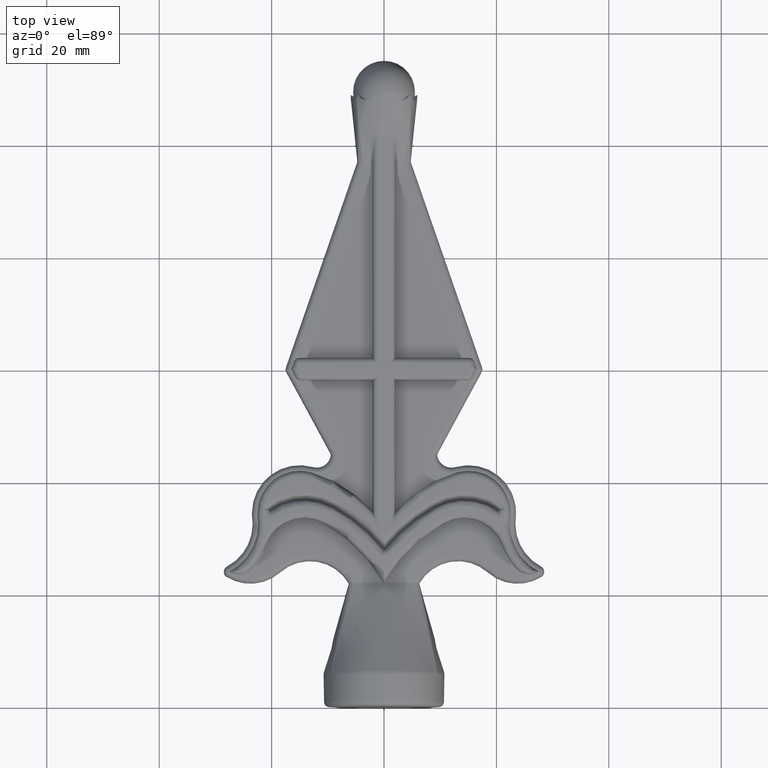
[diagram: clean part render]
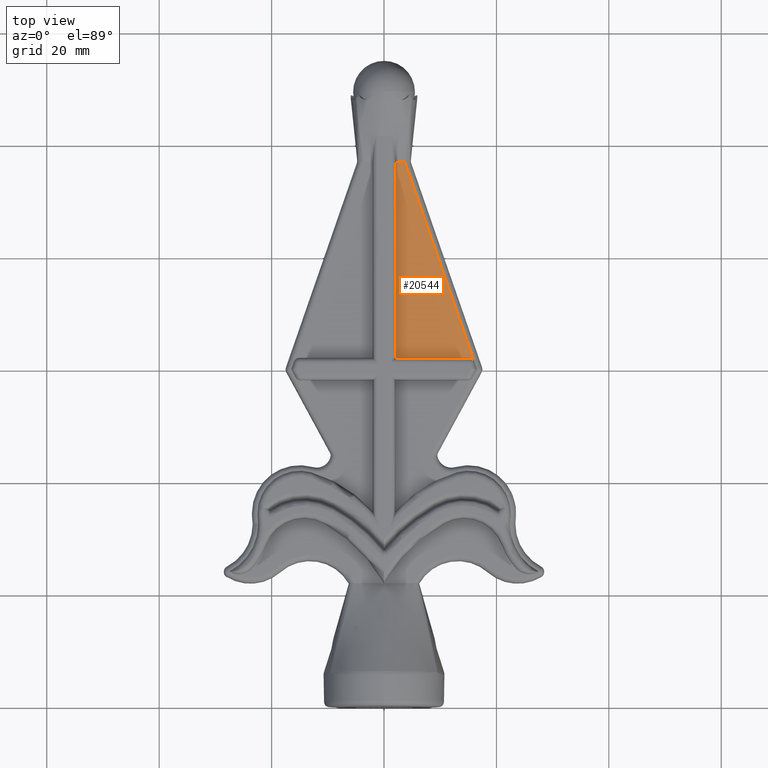
[diagram: same view with one face highlighted and labeled with its STEP entity id]
A machine part, top view. The second image highlights one B-rep face of the part: STEP entity #20544.
In plain terms, the highlighted planar face has unit normal (-0, 0, -1).
Its self-contained STEP definition (entity closure, byte-faithful):
#169 = DIRECTION ( 'NONE',  ( -1.092987269936850200E-014, 1.000000000000000000, 0.0000000000000000000 ) ) ;
#449 = CARTESIAN_POINT ( 'NONE',  ( 2.000000000000380600, 62.08884513025772400, 3.250000000000000000 ) ) ;
#649 = EDGE_CURVE ( 'NONE', #6780, #6549, #1291, .T. ) ;
#746 = CARTESIAN_POINT ( 'NONE',  ( 3.706146098996258700, 96.95780299131691000, 3.250000000000000000 ) ) ;
#1291 = LINE ( 'NONE', #449, #17598 ) ;
#1550 = ORIENTED_EDGE ( 'NONE', *, *, #649, .F. ) ;
#2015 = CARTESIAN_POINT ( 'NONE',  ( 16.03923065094003100, 61.41667690367096800, 3.250000000000000000 ) ) ;
#2121 = DIRECTION ( 'NONE',  ( -1.000000000000000000, -0.0000000000000000000, -0.0000000000000000000 ) ) ;
#2552 = CIRCLE ( 'NONE', #5812, 0.9999999999999991100 ) ;
#2646 = CARTESIAN_POINT ( 'NONE',  ( 16.50000000000000000, 60.08884513025772400, 3.250000000000000000 ) ) ;
#2672 = ORIENTED_EDGE ( 'NONE', *, *, #11530, .T. ) ;
#2787 = DIRECTION ( 'NONE',  ( -0.0000000000000000000, 0.0000000000000000000, -1.000000000000000000 ) ) ;
#2855 = DIRECTION ( 'NONE',  ( -1.000000000000000000, 0.0000000000000000000, 0.0000000000000000000 ) ) ;
#2878 = FACE_OUTER_BOUND ( 'NONE', #8971, .T. ) ;
#3454 = CARTESIAN_POINT ( 'NONE',  ( 2.000000000000380600, 62.08884513025772400, 3.250000000000000000 ) ) ;
#4282 = CARTESIAN_POINT ( 'NONE',  ( 15.09449453522267100, 62.08884513025772400, 3.250000000000000000 ) ) ;
#4758 = ORIENTED_EDGE ( 'NONE', *, *, #15697, .T. ) ;
#5276 = LINE ( 'NONE', #3454, #15408 ) ;
#5333 = CARTESIAN_POINT ( 'NONE',  ( 2.568806202392000000, 96.92192348803551700, 3.250000000000035100 ) ) ;
#5730 = AXIS2_PLACEMENT_3D ( 'NONE', #2646, #2787, #2855 ) ;
#5812 = AXIS2_PLACEMENT_3D ( 'NONE', #14676, #17924, #16198 ) ;
#6386 = CARTESIAN_POINT ( 'NONE',  ( 3.330133707121612800, 98.04138461875560000, 3.250000000000000000 ) ) ;
#6549 = VERTEX_POINT ( 'NONE', #14469 ) ;
#6780 = VERTEX_POINT ( 'NONE', #4282 ) ;
#6849 = ORIENTED_EDGE ( 'NONE', *, *, #16042, .T. ) ;
#7624 = CARTESIAN_POINT ( 'NONE',  ( 1.999999999999999600, 96.90953574028071700, 3.250000000000000000 ) ) ;
#8971 = EDGE_LOOP ( 'NONE', ( #4758, #12905, #1550, #2672, #6849 ) ) ;
#11294 = DIRECTION ( 'NONE',  ( -0.3278317734132558100, 0.9447361157173571600, -0.0000000000000000000 ) ) ;
#11530 = EDGE_CURVE ( 'NONE', #6780, #20403, #2552, .T. ) ;
#11819 = CARTESIAN_POINT ( 'NONE',  ( 1.999999999999999600, 96.90953574028071700, 3.250000000000000000 ) ) ;
#12311 = VERTEX_POINT ( 'NONE', #16366 ) ;
#12905 = ORIENTED_EDGE ( 'NONE', *, *, #13552, .F. ) ;
#13552 = EDGE_CURVE ( 'NONE', #6549, #14214, #5276, .T. ) ;
#13632 = LINE ( 'NONE', #6386, #15582 ) ;
#14214 = VERTEX_POINT ( 'NONE', #7624 ) ;
#14469 = CARTESIAN_POINT ( 'NONE',  ( 2.000000000000381000, 62.08884513025772400, 3.250000000000000000 ) ) ;
#14676 = CARTESIAN_POINT ( 'NONE',  ( 15.09449453522267400, 61.08884513025772400, 3.250000000000000000 ) ) ;
#15408 = VECTOR ( 'NONE', #169, 1000.000000000000000 ) ;
#15582 = VECTOR ( 'NONE', #11294, 1000.000000000000100 ) ;
#15697 = EDGE_CURVE ( 'NONE', #12311, #14214, #20404, .T. ) ;
#16042 = EDGE_CURVE ( 'NONE', #20403, #12311, #13632, .T. ) ;
#16198 = DIRECTION ( 'NONE',  ( -1.000000000000000000, 0.0000000000000000000, 0.0000000000000000000 ) ) ;
#16366 = CARTESIAN_POINT ( 'NONE',  ( 3.706146098996258700, 96.95780299131691000, 3.250000000000000000 ) ) ;
#16946 = PLANE ( 'NONE',  #5730 ) ;
#17598 = VECTOR ( 'NONE', #2121, 1000.000000000000000 ) ;
#17924 = DIRECTION ( 'NONE',  ( -0.0000000000000000000, -0.0000000000000000000, -1.000000000000000000 ) ) ;
#18102 = CARTESIAN_POINT ( 'NONE',  ( 3.137500932551243500, 96.93885344284770200, 3.250000000000000400 ) ) ;
#20403 = VERTEX_POINT ( 'NONE', #2015 ) ;
#20404 = B_SPLINE_CURVE_WITH_KNOTS ( 'NONE', 3,
 ( #746, #18102, #5333, #11819 ),
 .UNSPECIFIED., .F., .F.,
 ( 4, 4 ),
 ( 5.478245248127478400E-005, 0.001761599183905934500 ),
 .UNSPECIFIED. ) ;
#20544 = ADVANCED_FACE ( 'NONE', ( #2878 ), #16946, .F. ) ;